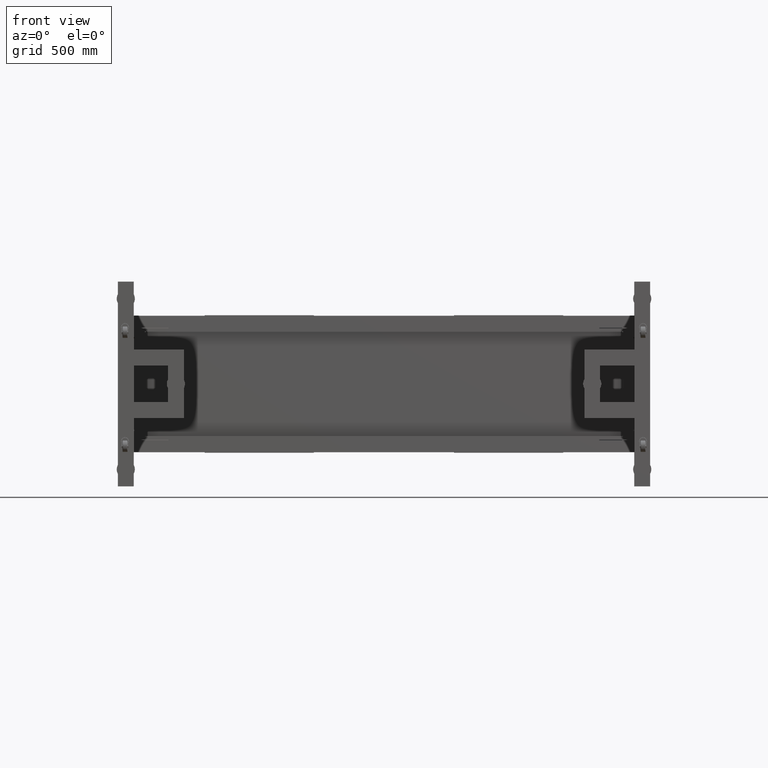
[diagram: clean part render]
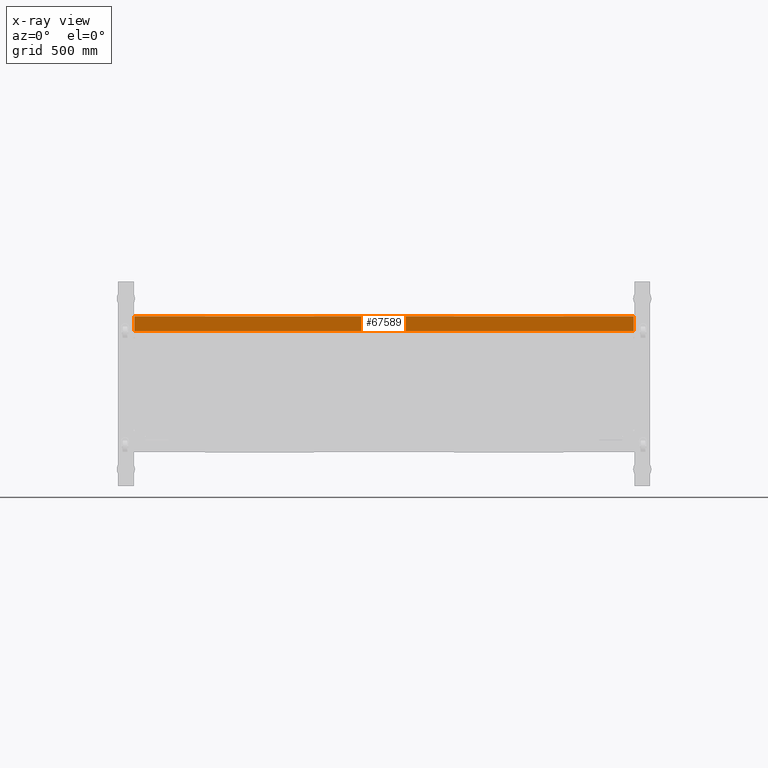
[diagram: x-ray — body ghosted, one internal face saturated and labeled with its STEP entity id]
A machine part, front view, then the same camera in x-ray: the body is ghosted and one INTERNAL B-rep face — a face not visible from any outside direction — is saturated and labeled: STEP entity #67589.
In plain terms, the highlighted planar face has unit normal (0, -1, -0).
Its self-contained STEP definition (entity closure, byte-faithful):
#1176 = CARTESIAN_POINT ( 'NONE',  ( -1266.172487437185964, 554.4410804020110390, 232.5000000000000853 ) ) ;
#5379 = LINE ( 'NONE', #54100, #80172 ) ;
#5876 = LINE ( 'NONE', #12844, #40777 ) ;
#7161 = CARTESIAN_POINT ( 'NONE',  ( 1229.827512562814036, 554.4410804020110390, 232.5000000000000853 ) ) ;
#7782 = VERTEX_POINT ( 'NONE', #50875 ) ;
#9944 = CARTESIAN_POINT ( 'NONE',  ( 1229.827512562814036, 554.4410804020110390, 232.5000000000000853 ) ) ;
#12844 = CARTESIAN_POINT ( 'NONE',  ( 1229.827512562814036, 554.4410804020108117, 297.5000000000001137 ) ) ;
#15983 = AXIS2_PLACEMENT_3D ( 'NONE', #7161, #19469, #75942 ) ;
#16168 = LINE ( 'NONE', #52211, #24779 ) ;
#19469 = DIRECTION ( 'NONE',  ( 0.000000000000000000, -1.000000000000000000, -2.999999999999999839E-15 ) ) ;
#24779 = VECTOR ( 'NONE', #71045, 1000.000000000000000 ) ;
#30834 = DIRECTION ( 'NONE',  ( -1.000000000000000000, -0.000000000000000000, 0.000000000000000000 ) ) ;
#37784 = VERTEX_POINT ( 'NONE', #63750 ) ;
#40777 = VECTOR ( 'NONE', #30834, 1000.000000000000000 ) ;
#41080 = DIRECTION ( 'NONE',  ( -1.000000000000000000, -0.000000000000000000, 0.000000000000000000 ) ) ;
#44986 = EDGE_LOOP ( 'NONE', ( #49032, #72802, #65780, #62827 ) ) ;
#45778 = CARTESIAN_POINT ( 'NONE',  ( 929.8275125628159685, 554.4410804020111527, 297.5000000000001137 ) ) ;
#49032 = ORIENTED_EDGE ( 'NONE', *, *, #71877, .F. ) ;
#50875 = CARTESIAN_POINT ( 'NONE',  ( -1266.172487437185964, 554.4410804020108117, 297.5000000000001137 ) ) ;
#52211 = CARTESIAN_POINT ( 'NONE',  ( 929.8275125628159685, 554.4410804020113801, 232.5000000000000853 ) ) ;
#53708 = DIRECTION ( 'NONE',  ( 0.000000000000000000, -2.999999999999999839E-15, 1.000000000000000000 ) ) ;
#54100 = CARTESIAN_POINT ( 'NONE',  ( -1266.172487437185964, 554.4410804020110390, 232.5000000000000853 ) ) ;
#59430 = EDGE_CURVE ( 'NONE', #65500, #7782, #5379, .T. ) ;
#59620 = VECTOR ( 'NONE', #41080, 1000.000000000000000 ) ;
#62827 = ORIENTED_EDGE ( 'NONE', *, *, #59430, .F. ) ;
#62861 = FACE_OUTER_BOUND ( 'NONE', #44986, .T. ) ;
#63750 = CARTESIAN_POINT ( 'NONE',  ( 929.8275125628159685, 554.4410804020113801, 232.5000000000000853 ) ) ;
#65500 = VERTEX_POINT ( 'NONE', #1176 ) ;
#65780 = ORIENTED_EDGE ( 'NONE', *, *, #80623, .T. ) ;
#67589 = ADVANCED_FACE ( 'NONE', ( #62861 ), #76328, .T. ) ;
#71045 = DIRECTION ( 'NONE',  ( 7.960835153364788038E-31, -2.999999999999999839E-15, 1.000000000000000000 ) ) ;
#71877 = EDGE_CURVE ( 'NONE', #37784, #65500, #79907, .T. ) ;
#72802 = ORIENTED_EDGE ( 'NONE', *, *, #74860, .T. ) ;
#74860 = EDGE_CURVE ( 'NONE', #37784, #75515, #16168, .T. ) ;
#75515 = VERTEX_POINT ( 'NONE', #45778 ) ;
#75942 = DIRECTION ( 'NONE',  ( 0.000000000000000000, -2.999999999999999839E-15, 1.000000000000000000 ) ) ;
#76328 = PLANE ( 'NONE',  #15983 ) ;
#79907 = LINE ( 'NONE', #9944, #59620 ) ;
#80172 = VECTOR ( 'NONE', #53708, 1000.000000000000000 ) ;
#80623 = EDGE_CURVE ( 'NONE', #75515, #7782, #5876, .T. ) ;